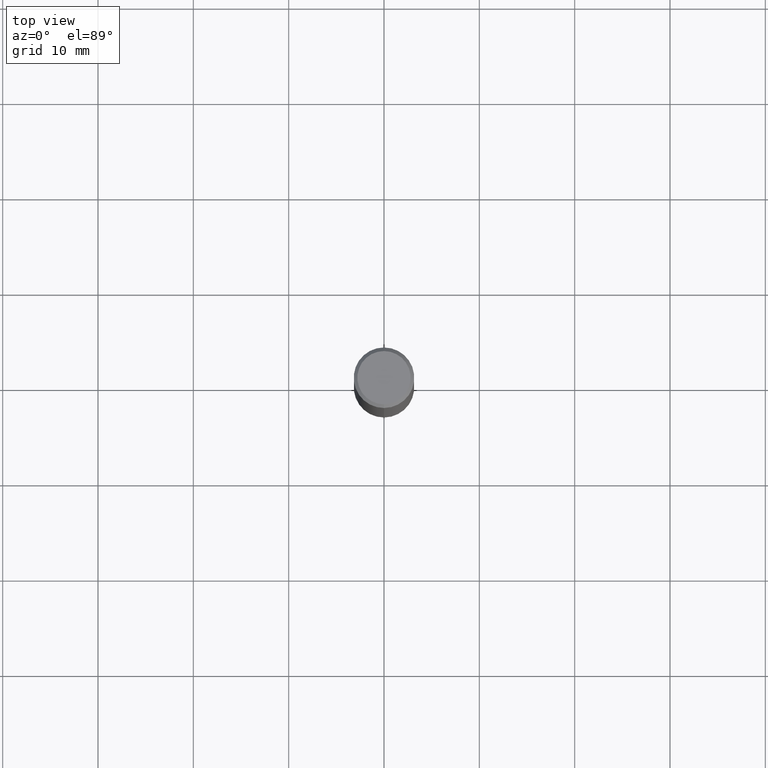
[diagram: clean part render]
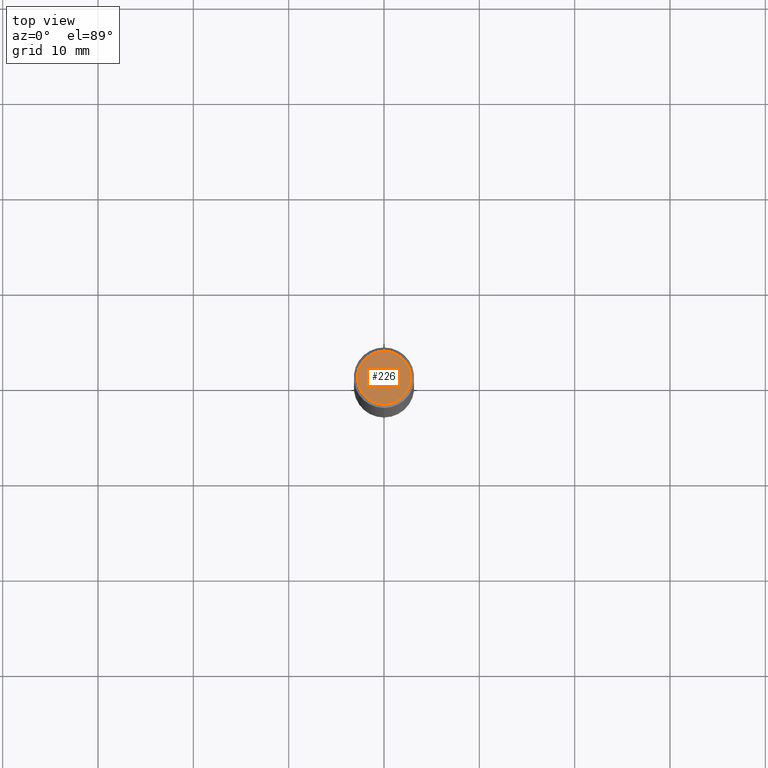
[diagram: same view with one face highlighted and labeled with its STEP entity id]
A machine part, top view. The second image highlights one B-rep face of the part: STEP entity #226.
In plain terms, the highlighted planar face has unit normal (-0, 0, 1).
Its self-contained STEP definition (entity closure, byte-faithful):
#33 = CARTESIAN_POINT ( 'NONE',  ( -8.061085147381519885E-16, -0.1099999999999995981, 3.845033941563335417E-16 ) ) ;
#105 = DIRECTION ( 'NONE',  ( 2.442672784230950021E-29, -3.495485401421227157E-15, -1.000000000000000000 ) ) ;
#107 = EDGE_LOOP ( 'NONE', ( #216, #111 ) ) ;
#111 = ORIENTED_EDGE ( 'NONE', *, *, #414, .F. ) ;
#127 = AXIS2_PLACEMENT_3D ( 'NONE', #139, #105, #450 ) ;
#139 = CARTESIAN_POINT ( 'NONE',  ( 0.000000000000000000, 0.000000000000000000, 0.000000000000000000 ) ) ;
#177 = DIRECTION ( 'NONE',  ( -6.982962677686265922E-15, -1.000000000000000000, 3.495485401421227157E-15 ) ) ;
#179 = VERTEX_POINT ( 'NONE', #433 ) ;
#180 = PLANE ( 'NONE',  #427 ) ;
#216 = ORIENTED_EDGE ( 'NONE', *, *, #260, .F. ) ;
#226 = ADVANCED_FACE ( 'NONE', ( #248 ), #180, .T. ) ;
#245 = AXIS2_PLACEMENT_3D ( 'NONE', #266, #422, #306 ) ;
#248 = FACE_OUTER_BOUND ( 'NONE', #107, .T. ) ;
#260 = EDGE_CURVE ( 'NONE', #179, #289, #328, .T. ) ;
#266 = CARTESIAN_POINT ( 'NONE',  ( 0.000000000000000000, 0.000000000000000000, 0.000000000000000000 ) ) ;
#289 = VERTEX_POINT ( 'NONE', #33 ) ;
#306 = DIRECTION ( 'NONE',  ( 6.982962677686265922E-15, 1.000000000000000000, -3.495485401421226763E-15 ) ) ;
#328 = CIRCLE ( 'NONE', #127, 0.1099999999999995981 ) ;
#387 = CIRCLE ( 'NONE', #245, 0.1099999999999995981 ) ;
#414 = EDGE_CURVE ( 'NONE', #289, #179, #387, .T. ) ;
#422 = DIRECTION ( 'NONE',  ( 2.442672784230950021E-29, -3.495485401421227157E-15, -1.000000000000000000 ) ) ;
#427 = AXIS2_PLACEMENT_3D ( 'NONE', #447, #494, #177 ) ;
#433 = CARTESIAN_POINT ( 'NONE',  ( 7.681258945454864194E-16, 0.1099999999999995981, -3.845033941563335417E-16 ) ) ;
#447 = CARTESIAN_POINT ( 'NONE',  ( 7.681258945454864194E-16, 0.1099999999999995981, -3.838606675688333083E-16 ) ) ;
#450 = DIRECTION ( 'NONE',  ( 6.982962677686265922E-15, 1.000000000000000000, -3.495485401421226763E-15 ) ) ;
#494 = DIRECTION ( 'NONE',  ( -2.442672784230950021E-29, 3.495485401421227157E-15, 1.000000000000000000 ) ) ;